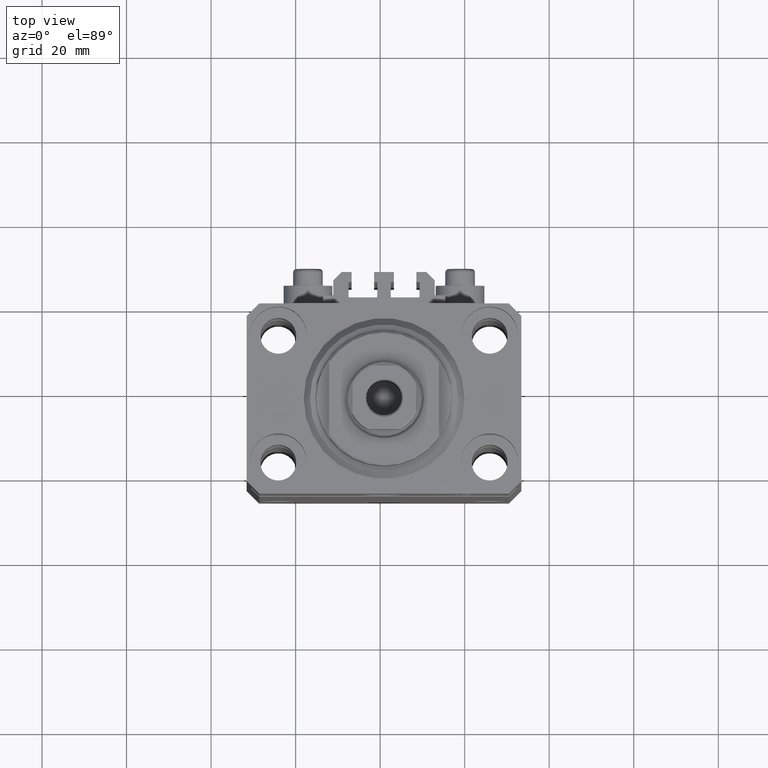
[diagram: clean part render]
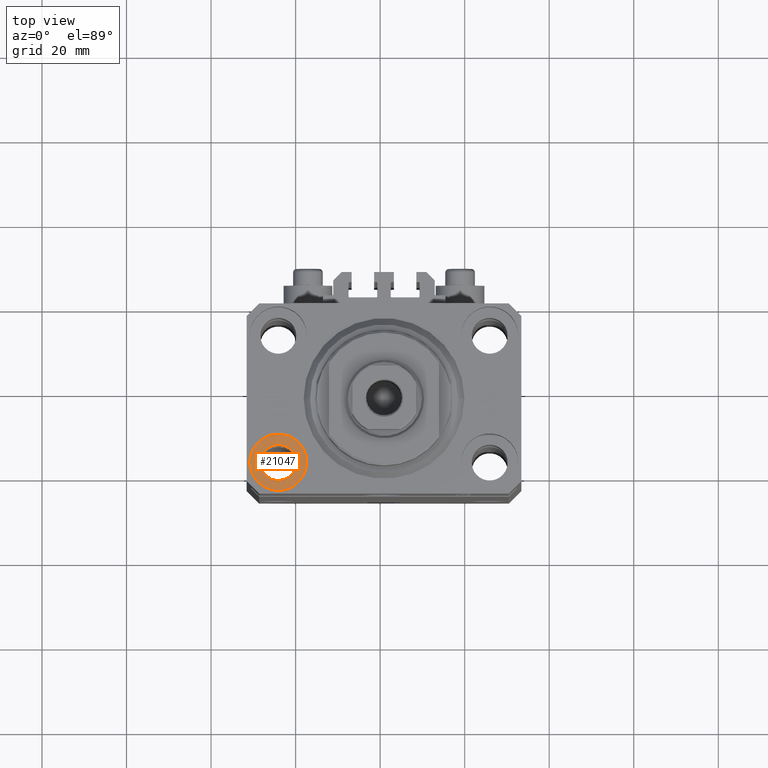
[diagram: same view with one face highlighted and labeled with its STEP entity id]
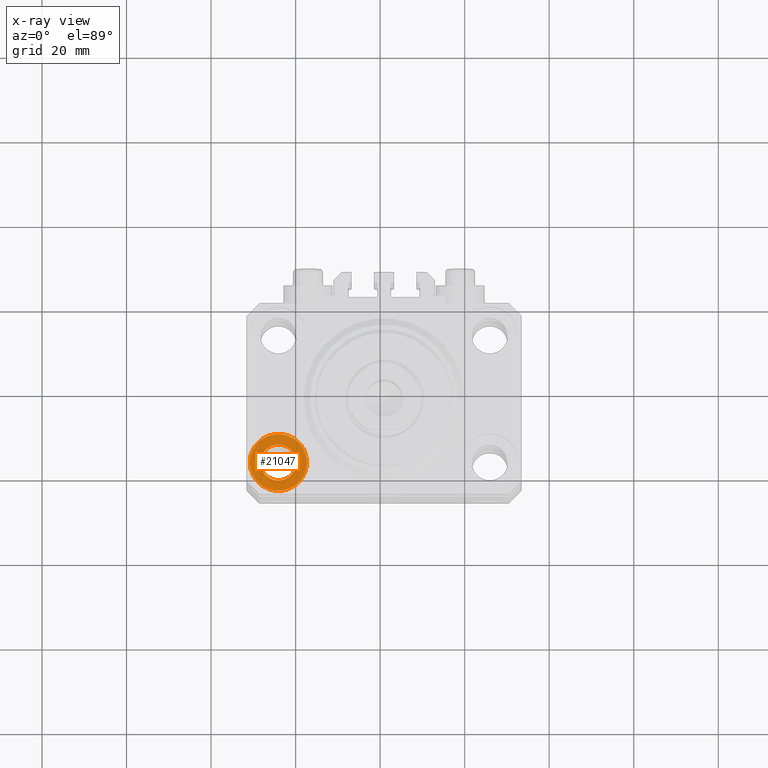
[diagram: x-ray of the same camera — body ghosted, the highlighted face saturated]
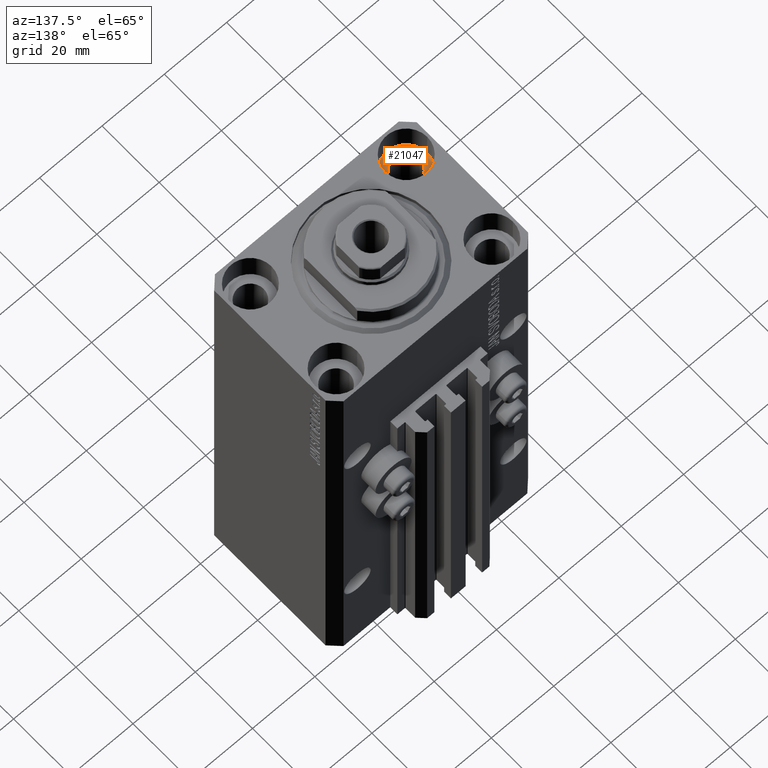
[diagram: same view with one face highlighted and labeled with its STEP entity id]
A machine part, top view. The second image highlights one B-rep face of the part: STEP entity #21047.
The next image is the same camera in x-ray: the body ghosted, the highlighted face saturated — about 0% of this face is hidden behind the body in this view.
A second angle (auxiliary view) of the same face is appended — the face is thin or edge-on in the first view.
In plain terms, the highlighted planar face has unit normal (0, 0, 1).
Its self-contained STEP definition (entity closure, byte-faithful):
#613 = VERTEX_POINT ( 'NONE', #18413 ) ;
#707 = DIRECTION ( 'NONE',  ( 0.000000000000000000, 0.000000000000000000, 1.000000000000000000 ) ) ;
#816 = EDGE_CURVE ( 'NONE', #613, #20037, #30583, .T. ) ;
#2339 = EDGE_LOOP ( 'NONE', ( #10993, #10779 ) ) ;
#3592 = VERTEX_POINT ( 'NONE', #4008 ) ;
#4008 = CARTESIAN_POINT ( 'NONE',  ( -31.75000000004154899, -15.00000000000000000, -9.000000000000000000 ) ) ;
#4627 = AXIS2_PLACEMENT_3D ( 'NONE', #42775, #31944, #35548 ) ;
#7268 = DIRECTION ( 'NONE',  ( 1.000000000000000000, 0.000000000000000000, 0.000000000000000000 ) ) ;
#8146 = FACE_OUTER_BOUND ( 'NONE', #44060, .T. ) ;
#8547 = ORIENTED_EDGE ( 'NONE', *, *, #15176, .T. ) ;
#9542 = DIRECTION ( 'NONE',  ( 0.000000000000000000, 0.000000000000000000, 1.000000000000000000 ) ) ;
#9556 = CIRCLE ( 'NONE', #44214, 6.750000000041541881 ) ;
#10571 = AXIS2_PLACEMENT_3D ( 'NONE', #36674, #15229, #7268 ) ;
#10768 = CIRCLE ( 'NONE', #4627, 6.750000000041541881 ) ;
#10779 = ORIENTED_EDGE ( 'NONE', *, *, #816, .F. ) ;
#10993 = ORIENTED_EDGE ( 'NONE', *, *, #27518, .F. ) ;
#11109 = CARTESIAN_POINT ( 'NONE',  ( -18.24999999995846167, -15.00000000000000000, -9.000000000000000000 ) ) ;
#12542 = AXIS2_PLACEMENT_3D ( 'NONE', #23554, #41174, #16342 ) ;
#13035 = VERTEX_POINT ( 'NONE', #11109 ) ;
#15176 = EDGE_CURVE ( 'NONE', #13035, #3592, #10768, .T. ) ;
#15229 = DIRECTION ( 'NONE',  ( 0.000000000000000000, 0.000000000000000000, 1.000000000000000000 ) ) ;
#16342 = DIRECTION ( 'NONE',  ( 1.000000000000000000, 0.000000000000000000, -0.000000000000000000 ) ) ;
#17017 = CARTESIAN_POINT ( 'NONE',  ( -25.00000000000000355, -15.00000000000000000, -9.000000000000000000 ) ) ;
#17561 = CARTESIAN_POINT ( 'NONE',  ( -20.74999999995846522, -15.00000000000000000, -9.000000000000000000 ) ) ;
#18413 = CARTESIAN_POINT ( 'NONE',  ( -29.25000000004154543, -15.00000000000000000, -9.000000000000000000 ) ) ;
#19493 = FACE_BOUND ( 'NONE', #2339, .T. ) ;
#20037 = VERTEX_POINT ( 'NONE', #17561 ) ;
#21047 = ADVANCED_FACE ( 'NONE', ( #19493, #8146 ), #37557, .T. ) ;
#23554 = CARTESIAN_POINT ( 'NONE',  ( -25.00000000000000355, -15.00000000000000000, -9.000000000000000000 ) ) ;
#27518 = EDGE_CURVE ( 'NONE', #20037, #613, #45729, .T. ) ;
#27621 = DIRECTION ( 'NONE',  ( 1.000000000000000000, 0.000000000000000000, 0.000000000000000000 ) ) ;
#27945 = EDGE_CURVE ( 'NONE', #3592, #13035, #9556, .T. ) ;
#28097 = ORIENTED_EDGE ( 'NONE', *, *, #27945, .T. ) ;
#30583 = CIRCLE ( 'NONE', #10571, 4.250000000041540105 ) ;
#31109 = AXIS2_PLACEMENT_3D ( 'NONE', #33511, #707, #36880 ) ;
#31944 = DIRECTION ( 'NONE',  ( 0.000000000000000000, 0.000000000000000000, 1.000000000000000000 ) ) ;
#33511 = CARTESIAN_POINT ( 'NONE',  ( -25.00000000000000355, -15.00000000000000000, -9.000000000000000000 ) ) ;
#35548 = DIRECTION ( 'NONE',  ( 1.000000000000000000, 0.000000000000000000, 0.000000000000000000 ) ) ;
#36674 = CARTESIAN_POINT ( 'NONE',  ( -25.00000000000000355, -15.00000000000000000, -9.000000000000000000 ) ) ;
#36880 = DIRECTION ( 'NONE',  ( 1.000000000000000000, 0.000000000000000000, 0.000000000000000000 ) ) ;
#37557 = PLANE ( 'NONE',  #12542 ) ;
#41174 = DIRECTION ( 'NONE',  ( 0.000000000000000000, 0.000000000000000000, 1.000000000000000000 ) ) ;
#42775 = CARTESIAN_POINT ( 'NONE',  ( -25.00000000000000355, -15.00000000000000000, -9.000000000000000000 ) ) ;
#44060 = EDGE_LOOP ( 'NONE', ( #8547, #28097 ) ) ;
#44214 = AXIS2_PLACEMENT_3D ( 'NONE', #17017, #9542, #27621 ) ;
#45729 = CIRCLE ( 'NONE', #31109, 4.250000000041540105 ) ;